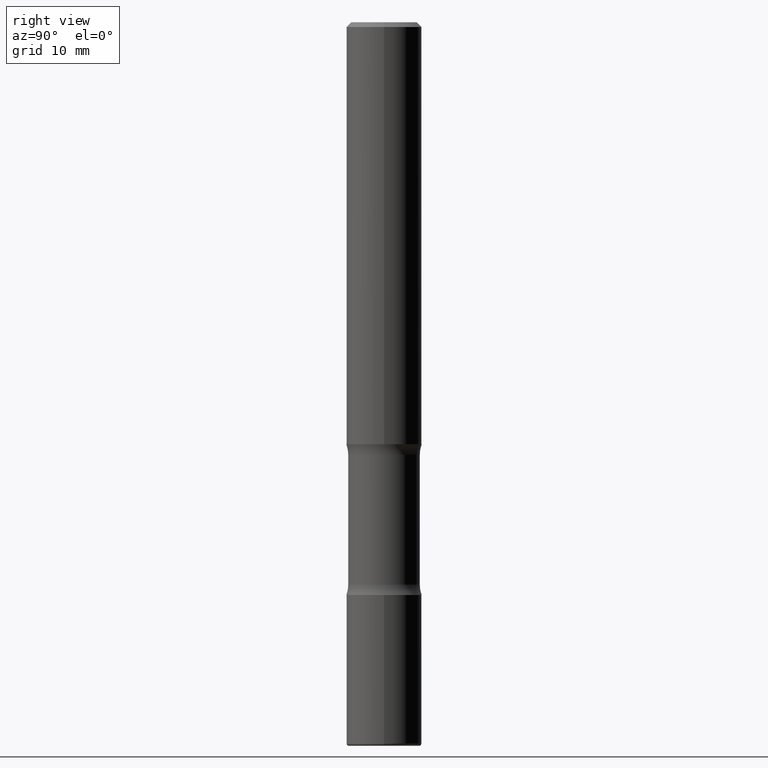
[diagram: clean part render]
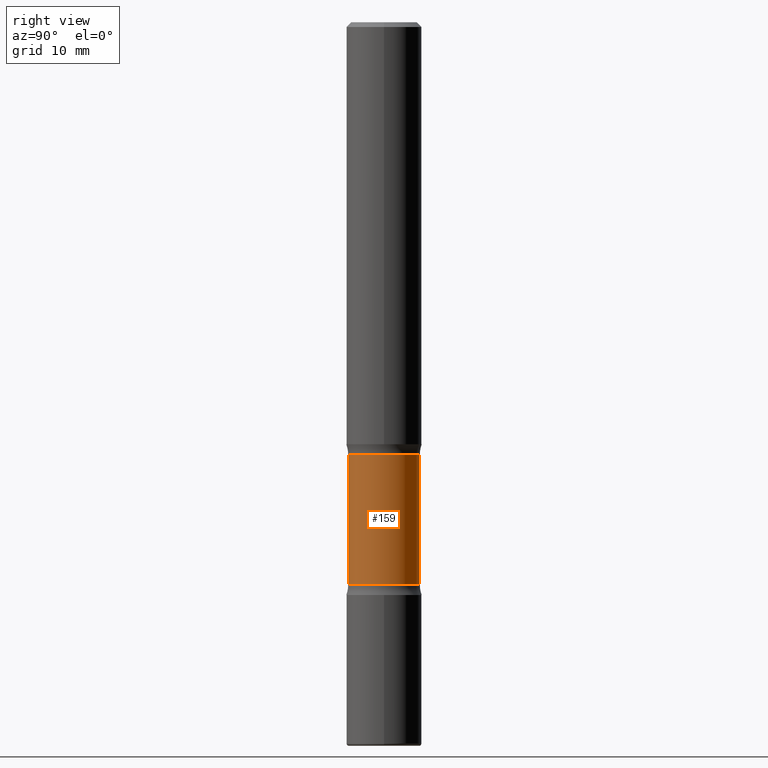
[diagram: same view with one face highlighted and labeled with its STEP entity id]
A machine part, right view. The second image highlights one B-rep face of the part: STEP entity #159.
In plain terms, the highlighted cylindrical surface (edge-blend (fillet) strip) has radius 3.7703 mm, axis along (0, -0, -1).
Its self-contained STEP definition (entity closure, byte-faithful):
#7 = VERTEX_POINT ( 'NONE', #357 ) ;
#19 = CYLINDRICAL_SURFACE ( 'NONE', #443, 0.1484375000000000000 ) ;
#68 = DIRECTION ( 'NONE',  ( 2.523926373086038410E-29, -3.379125637513666367E-15, -1.000000000000000000 ) ) ;
#70 = DIRECTION ( 'NONE',  ( 2.523926373086038410E-29, -3.379125637513666367E-15, -1.000000000000000000 ) ) ;
#78 = ORIENTED_EDGE ( 'NONE', *, *, #470, .T. ) ;
#79 = ORIENTED_EDGE ( 'NONE', *, *, #356, .F. ) ;
#95 = AXIS2_PLACEMENT_3D ( 'NONE', #505, #70, #104 ) ;
#103 = CARTESIAN_POINT ( 'NONE',  ( -1.018355171544137761E-15, -0.1484375000000104083, -2.999999999999999112 ) ) ;
#104 = DIRECTION ( 'NONE',  ( 6.982962677686265133E-15, 1.000000000000000000, -3.680805717779217644E-15 ) ) ;
#141 = DIRECTION ( 'NONE',  ( 6.982962677686266711E-15, 1.000000000000000000, -3.680805717779217644E-15 ) ) ;
#146 = VECTOR ( 'NONE', #192, 39.37007874015748143 ) ;
#159 = ADVANCED_FACE ( 'NONE', ( #270 ), #19, .T. ) ;
#164 = AXIS2_PLACEMENT_3D ( 'NONE', #321, #68, #277 ) ;
#171 = CARTESIAN_POINT ( 'NONE',  ( -1.045153991847949569E-15, -0.1484375000000081601, -2.331501840915390034 ) ) ;
#184 = DIRECTION ( 'NONE',  ( 2.523926373086038410E-29, -3.379125637513666367E-15, -1.000000000000000000 ) ) ;
#192 = DIRECTION ( 'NONE',  ( 2.523926373086038410E-29, -3.379125637513666367E-15, -1.000000000000000000 ) ) ;
#226 = VECTOR ( 'NONE', #439, 39.37007874015748143 ) ;
#235 = EDGE_CURVE ( 'NONE', #432, #7, #441, .T. ) ;
#253 = VERTEX_POINT ( 'NONE', #171 ) ;
#257 = ORIENTED_EDGE ( 'NONE', *, *, #325, .T. ) ;
#268 = CIRCLE ( 'NONE', #164, 0.1484375000000000278 ) ;
#270 = FACE_OUTER_BOUND ( 'NONE', #286, .T. ) ;
#277 = DIRECTION ( 'NONE',  ( 6.982962677686265133E-15, 1.000000000000000000, -3.680805717779216855E-15 ) ) ;
#282 = CARTESIAN_POINT ( 'NONE',  ( 1.036533522469098602E-15, 0.1484374999999936995, -1.793498159084610633 ) ) ;
#286 = EDGE_LOOP ( 'NONE', ( #257, #78, #79, #424 ) ) ;
#318 = CIRCLE ( 'NONE', #95, 0.1484375000000000000 ) ;
#321 = CARTESIAN_POINT ( 'NONE',  ( 4.340320582405264943E-29, -6.327300400853882778E-15, -1.793498159084609966 ) ) ;
#322 = LINE ( 'NONE', #103, #146 ) ;
#324 = VERTEX_POINT ( 'NONE', #372 ) ;
#325 = EDGE_CURVE ( 'NONE', #432, #324, #268, .T. ) ;
#356 = EDGE_CURVE ( 'NONE', #7, #253, #318, .T. ) ;
#357 = CARTESIAN_POINT ( 'NONE',  ( 1.036533522469112013E-15, 0.1484374999999918399, -2.331501840915391366 ) ) ;
#372 = CARTESIAN_POINT ( 'NONE',  ( -1.045153991847964360E-15, -0.1484375000000063560, -1.793498159084609522 ) ) ;
#424 = ORIENTED_EDGE ( 'NONE', *, *, #235, .F. ) ;
#432 = VERTEX_POINT ( 'NONE', #282 ) ;
#439 = DIRECTION ( 'NONE',  ( 2.523926373086038410E-29, -3.379125637513666367E-15, -1.000000000000000000 ) ) ;
#441 = LINE ( 'NONE', #489, #226 ) ;
#443 = AXIS2_PLACEMENT_3D ( 'NONE', #503, #184, #141 ) ;
#470 = EDGE_CURVE ( 'NONE', #324, #253, #322, .T. ) ;
#489 = CARTESIAN_POINT ( 'NONE',  ( 1.036533522469128973E-15, 0.1484374999999896194, -3.000000000000000444 ) ) ;
#503 = CARTESIAN_POINT ( 'NONE',  ( 7.385442397868472267E-29, -1.040422170319851125E-14, -2.999999999999999556 ) ) ;
#505 = CARTESIAN_POINT ( 'NONE',  ( 5.698202263795362163E-29, -8.145282435205020267E-15, -2.331501840915390478 ) ) ;